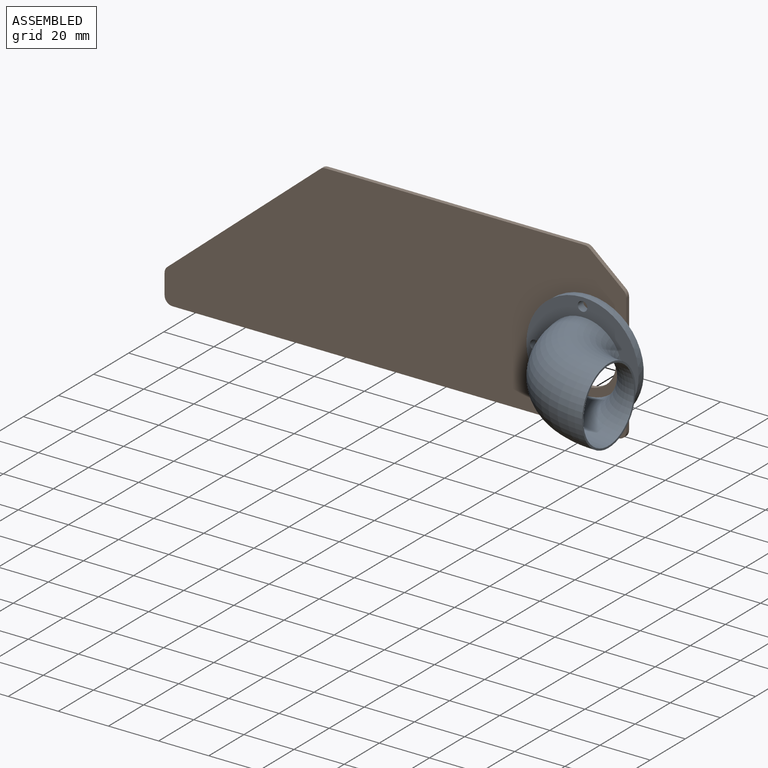
[diagram: assembled view]
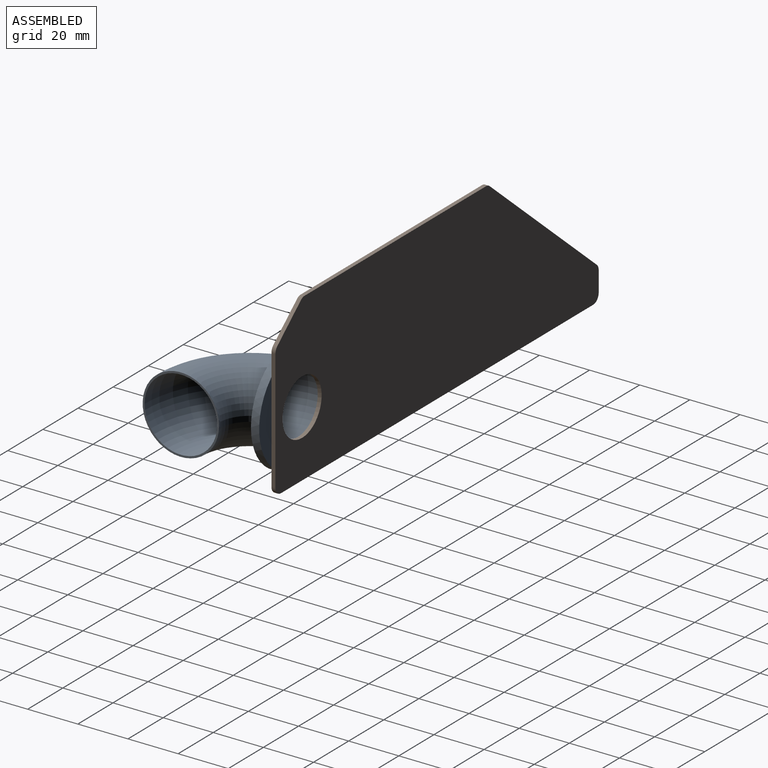
[diagram: assembled view, second angle]
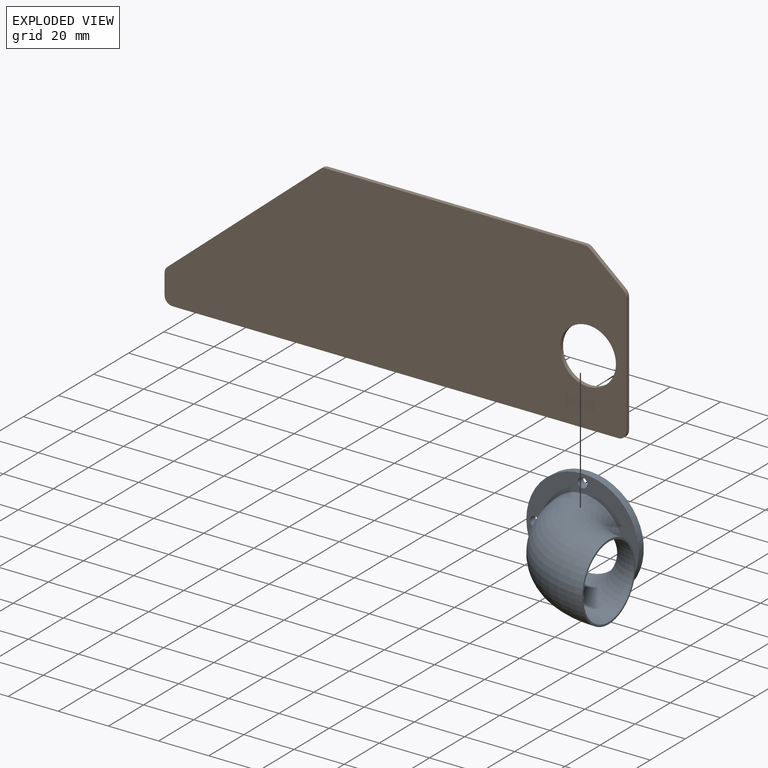
[diagram: exploded view]
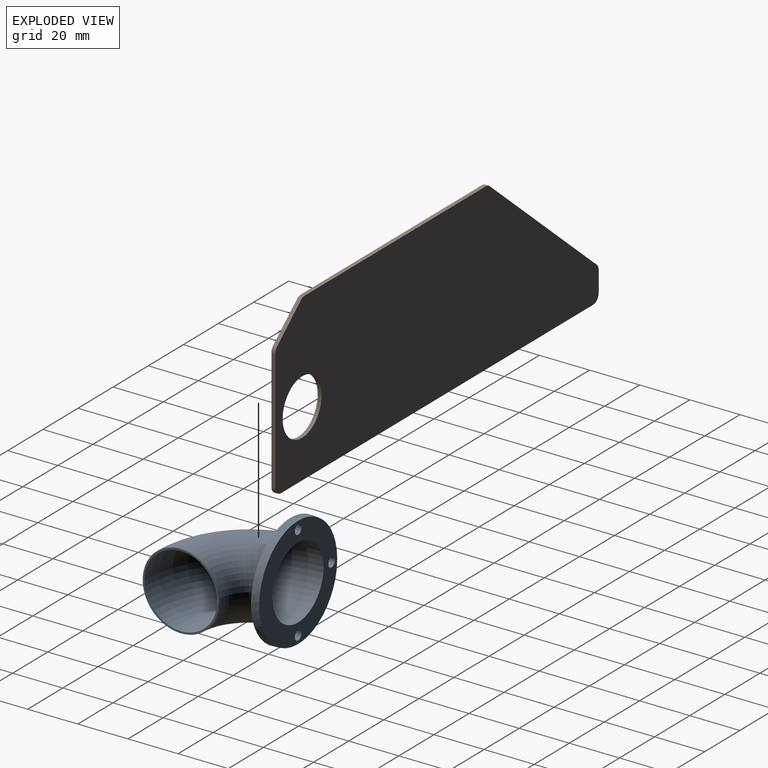
[diagram: exploded view, second angle]
ASSEMBLY  parts=2 mates=2
PART A: 9 faces, bbox 49.9x44.8x46.3 mm
  f0: torus R=27.52mm, axis (0,1,0), area 3834.5mm2, adj f2,f5
  f1: plane 44.45x44.45mm, normal (0,0,-1), area 859.1mm2, adj f3,f4,f6,f7,f8
  f2: plane 30.48x30.48mm, normal (1,0,0), area 71.1mm2, adj f0,f3
  f3: torus R=27.52mm, axis (0,1,0), area 3932.7mm2, adj f1,f2
  f4: cone r=22.23mm half-angle=3deg, axis (0,0,1), area 445.6mm2, adj f1,f5
  f5: plane 44.78x44.78mm, normal (0,0,1), area 804.7mm2, adj f0,f4,f6,f7,f8
  f6: cylinder r=1.91mm len=3.81mm, axis (0,0,-1), area 38mm2, adj f1,f5
  f7: cylinder r=1.91mm len=3.81mm, axis (0,0,-1), area 38mm2, adj f1,f5
  f8: cylinder r=1.91mm len=3.81mm, axis (0,0,-1), area 38mm2, adj f1,f5
PART B: 15 faces, bbox 184.2x1.6x66 mm
  f0: plane 60.99x51.64mm, normal (-0.65,0,0.76), area 125.8mm2, adj f6,f7,f8,f13
  f1: plane 8.05x1.57mm, normal (-1,0,0), area 12.7mm2, adj f6,f7,f8,f9
  f2: plane 177.8x1.57mm, normal (0,0,-1), area 280mm2, adj f6,f7,f9,f10
  f3: plane 48.24x1.57mm, normal (1,0,0), area 76mm2, adj f6,f7,f10,f11
  f4: plane 13.48x11.45mm, normal (0.65,0,0.76), area 27.8mm2, adj f6,f7,f11,f12
  f5: plane 103.33x1.57mm, normal (0,0,1), area 162.7mm2, adj f6,f7,f12,f13
  f6: plane 184.15x66.04mm, normal (0,-1,0), area 9985.9mm2, adj f0,f1,f2,f3,f4,f5,f8,f9
  f7: plane 184.15x66.04mm, normal (0,1,0), area 9985.9mm2, adj f0,f1,f2,f3,f4,f5,f8,f9
  f8: cylinder r=3.17mm len=2.42mm, axis (0,1,0), area 4.3mm2, adj f0,f1,f6,f7
  f9: cylinder r=3.17mm len=3.18mm, axis (0,1,0), area 7.9mm2, adj f1,f2,f6,f7
  f10: cylinder r=3.17mm len=3.18mm, axis (0,1,0), area 7.9mm2, adj f2,f3,f6,f7
  f11: cylinder r=3.17mm len=2.42mm, axis (0,1,0), area 4.3mm2, adj f3,f4,f6,f7
  f12: cylinder r=3.17mm len=2.06mm, axis (0,1,0), area 3.5mm2, adj f4,f5,f6,f7
  f13: cylinder r=3.17mm len=2.05mm, axis (0,1,0), area 3.5mm2, adj f0,f5,f6,f7
  f14: cylinder r=11.11mm len=22.23mm, axis (0,-1,0), area 110mm2, adj f6,f7
PLACE A rot(axis=(1,0,0),90deg) t=(1.44,7.62,29.4)mm
PLACE B t=(-79.16,9.19,29.4)mm
MATE parallel A.f1 <-> B.f6  axis (0,1,0) through (-25.83,7.62,29.4)mm
MATE cylindrical B.f14 <-> A.f4  axis (0,-1,0) through (-26.09,7.62,29.4)mm
